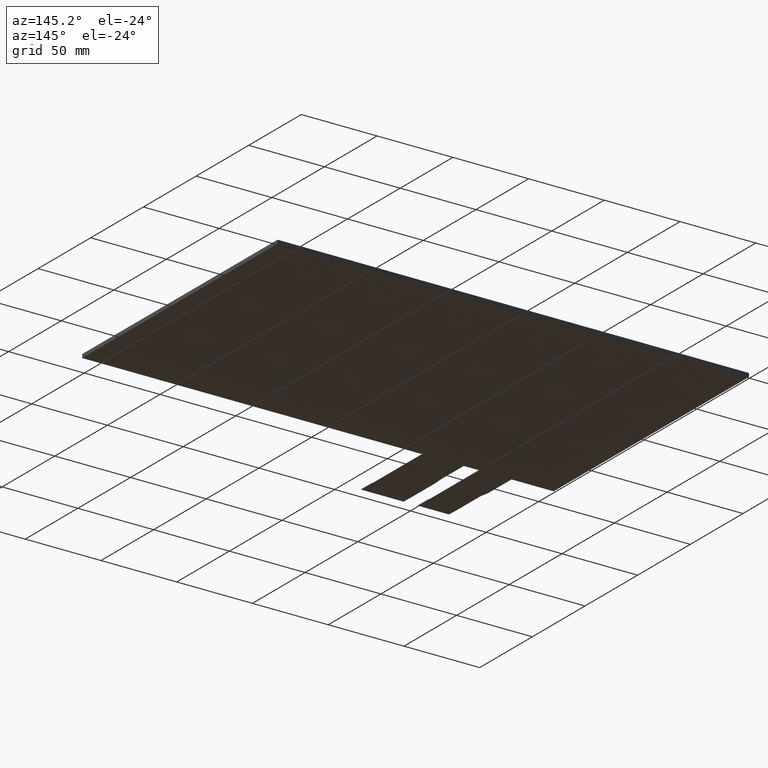
[diagram: clean part render]
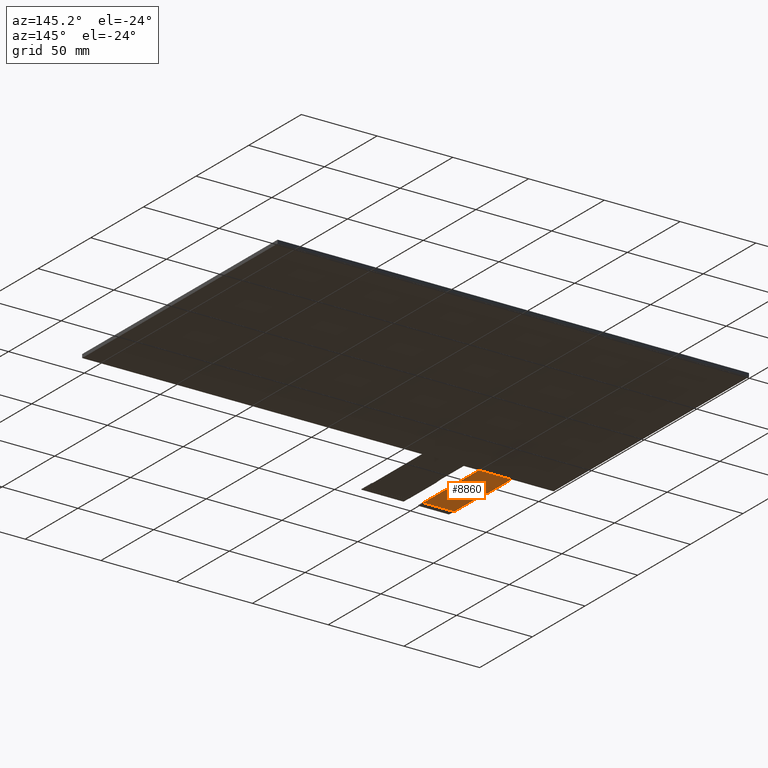
[diagram: same view with one face highlighted and labeled with its STEP entity id]
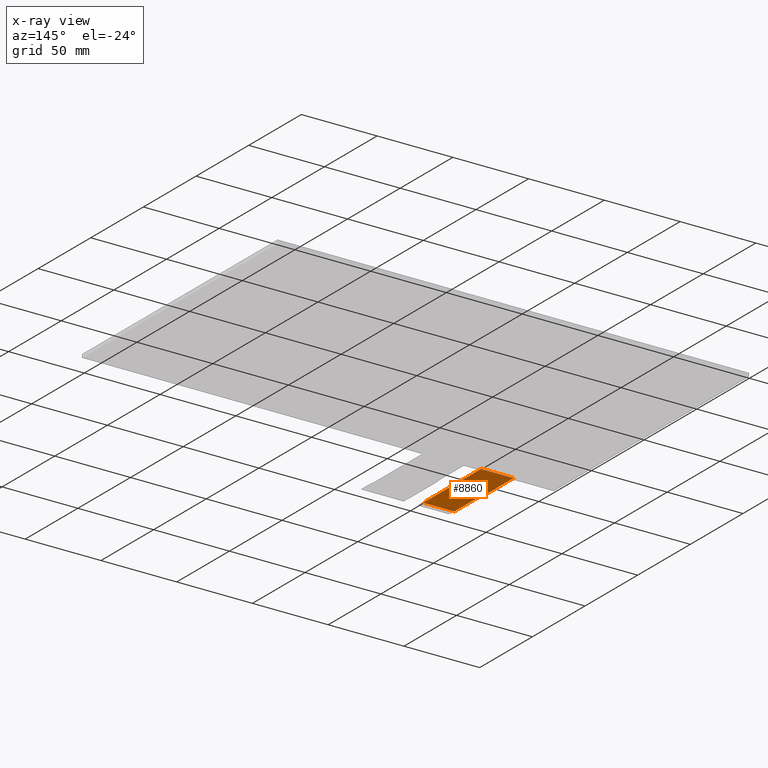
[diagram: x-ray of the same camera — body ghosted, the highlighted face saturated]
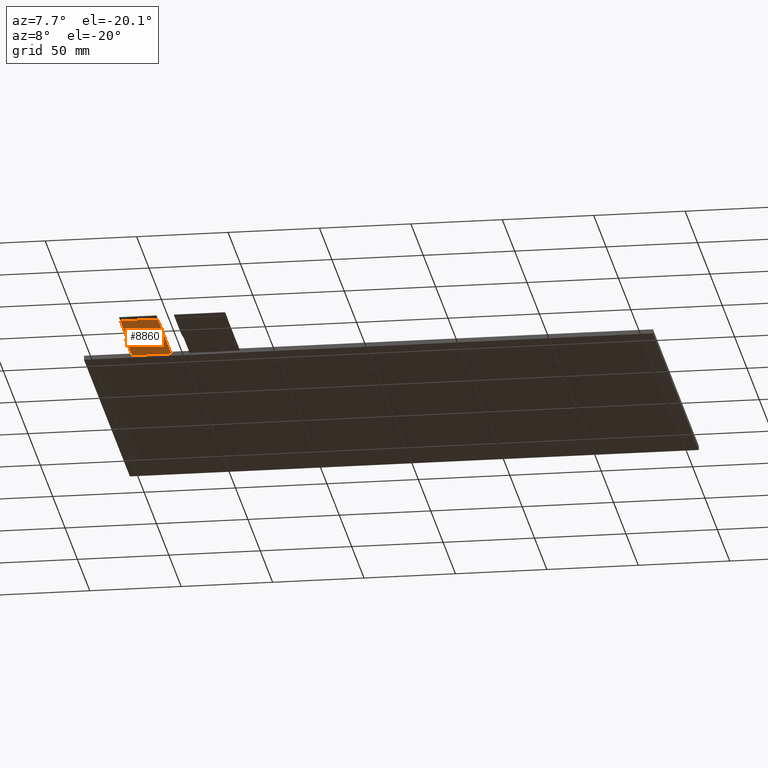
[diagram: same view with one face highlighted and labeled with its STEP entity id]
A machine part, auxiliary view. The second image highlights one B-rep face of the part: STEP entity #8860.
The next image is the same camera in x-ray: the body ghosted, the highlighted face saturated — about 0% of this face is hidden behind the body in this view.
A second angle (auxiliary view) of the same face is appended — the face is thin or edge-on in the first view.
In plain terms, the highlighted planar face has unit normal (0, 0, -1).
Its self-contained STEP definition (entity closure, byte-faithful):
#522=PLANE('',#9310);
#944=FACE_OUTER_BOUND('',#1366,.T.);
#1366=EDGE_LOOP('',(#8083,#8084,#8085,#8086,#8087,#8088));
#2568=LINE('',#13798,#3808);
#2571=LINE('',#13804,#3811);
#2572=LINE('',#13806,#3812);
#2573=LINE('',#13808,#3813);
#2574=LINE('',#13810,#3814);
#2575=LINE('',#13811,#3815);
#3808=VECTOR('',#11306,10.);
#3811=VECTOR('',#11313,10.);
#3812=VECTOR('',#11314,10.);
#3813=VECTOR('',#11315,10.);
#3814=VECTOR('',#11316,10.);
#3815=VECTOR('',#11317,10.);
#4676=VERTEX_POINT('',#13795);
#4677=VERTEX_POINT('',#13797);
#4678=VERTEX_POINT('',#13803);
#4679=VERTEX_POINT('',#13805);
#4680=VERTEX_POINT('',#13807);
#4681=VERTEX_POINT('',#13809);
#5896=EDGE_CURVE('',#4677,#4676,#2568,.T.);
#5899=EDGE_CURVE('',#4676,#4678,#2571,.T.);
#5900=EDGE_CURVE('',#4678,#4679,#2572,.T.);
#5901=EDGE_CURVE('',#4679,#4680,#2573,.T.);
#5902=EDGE_CURVE('',#4681,#4680,#2574,.T.);
#5903=EDGE_CURVE('',#4681,#4677,#2575,.T.);
#8083=ORIENTED_EDGE('',*,*,#5896,.T.);
#8084=ORIENTED_EDGE('',*,*,#5899,.T.);
#8085=ORIENTED_EDGE('',*,*,#5900,.T.);
#8086=ORIENTED_EDGE('',*,*,#5901,.T.);
#8087=ORIENTED_EDGE('',*,*,#5902,.F.);
#8088=ORIENTED_EDGE('',*,*,#5903,.T.);
#8860=ADVANCED_FACE('',(#944),#522,.T.);
#9310=AXIS2_PLACEMENT_3D('',#13802,#11311,#11312);
#11306=DIRECTION('',(-1.,0.,0.));
#11311=DIRECTION('center_axis',(0.,0.,-1.));
#11312=DIRECTION('ref_axis',(-1.,0.,0.));
#11313=DIRECTION('',(0.,1.,0.));
#11314=DIRECTION('',(-0.190808995376543,0.981627183447664,0.));
#11315=DIRECTION('',(-7.22523740490265E-16,1.,0.));
#11316=DIRECTION('',(-1.,-1.14161750604129E-16,0.));
#11317=DIRECTION('',(5.9211894646675E-16,-1.,0.));
#13795=CARTESIAN_POINT('',(-129.18,-150.22,-1.2));
#13797=CARTESIAN_POINT('',(-108.68,-150.22,-1.2));
#13798=CARTESIAN_POINT('',(-114.055,-150.22,-1.2));
#13802=CARTESIAN_POINT('Origin',(-119.43,-125.22,-1.2));
#13803=CARTESIAN_POINT('',(-129.18,-124.95,-1.2));
#13804=CARTESIAN_POINT('',(-129.18,-124.95,-1.2));
#13805=CARTESIAN_POINT('',(-130.18,-119.80544598403,-1.2));
#13806=CARTESIAN_POINT('',(-130.18,-119.80544598403,-1.2));
#13807=CARTESIAN_POINT('',(-130.18,-95.22,-1.2));
#13808=CARTESIAN_POINT('',(-130.18,-95.22,-1.2));
#13809=CARTESIAN_POINT('',(-108.68,-95.22,-1.2));
#13810=CARTESIAN_POINT('',(17.645,-95.22,-1.2));
#13811=CARTESIAN_POINT('',(-108.68,-155.22,-1.2));